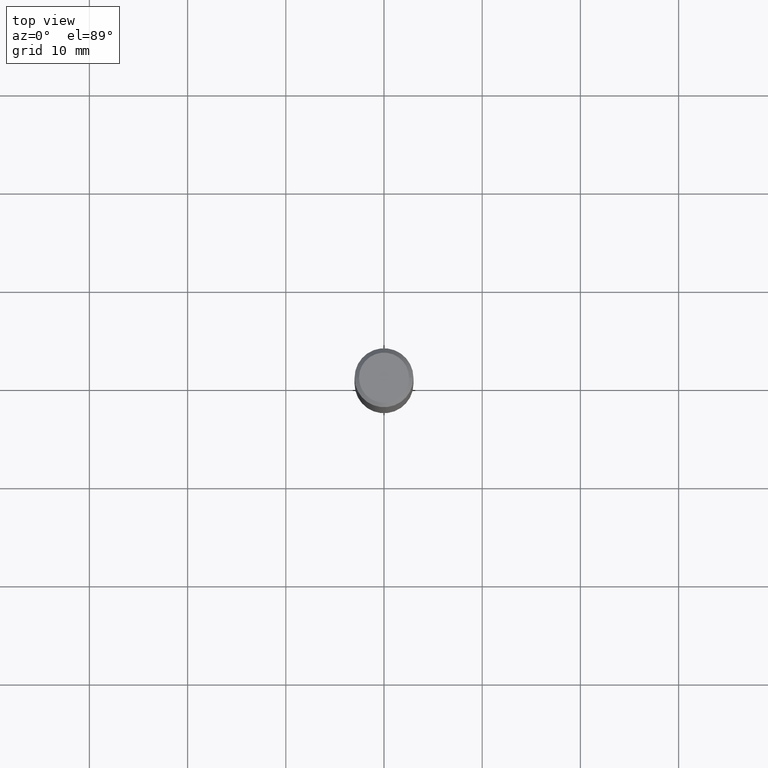
[diagram: clean part render]
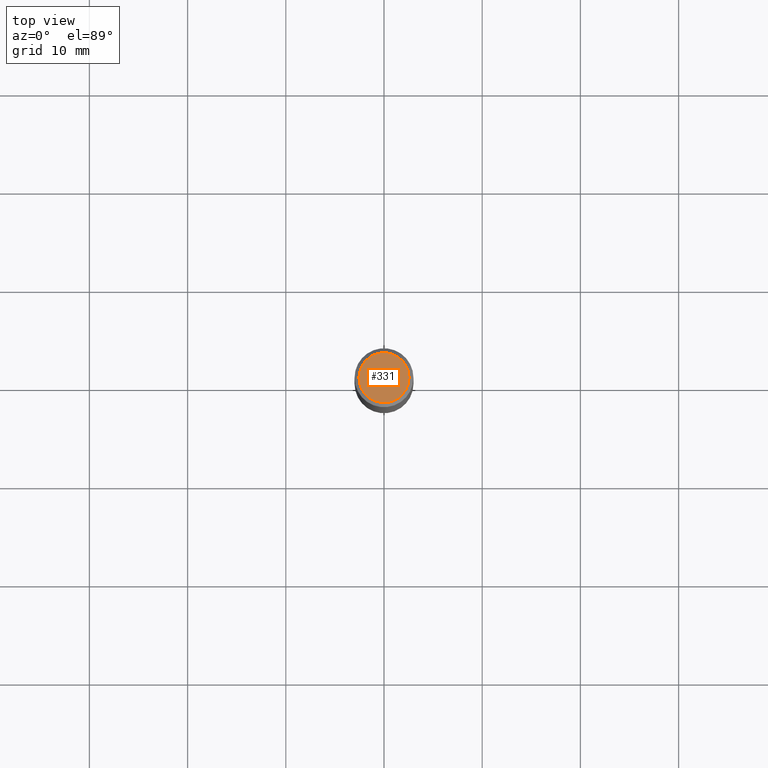
[diagram: same view with one face highlighted and labeled with its STEP entity id]
A machine part, top view. The second image highlights one B-rep face of the part: STEP entity #331.
In plain terms, the highlighted planar face has unit normal (0, -0, -1).
Its self-contained STEP definition (entity closure, byte-faithful):
#10 = VERTEX_POINT ( 'NONE', #278 ) ;
#18 = EDGE_CURVE ( 'NONE', #191, #10, #481, .T. ) ;
#26 = FACE_OUTER_BOUND ( 'NONE', #385, .T. ) ;
#74 = DIRECTION ( 'NONE',  ( 1.000000000000000000, -6.982962677686266711E-15, 4.875668750515086816E-29 ) ) ;
#121 = DIRECTION ( 'NONE',  ( -2.445468806185136597E-29, 3.491481338843145583E-15, 1.000000000000000000 ) ) ;
#166 = AXIS2_PLACEMENT_3D ( 'NONE', #366, #257, #265 ) ;
#191 = VERTEX_POINT ( 'NONE', #359 ) ;
#218 = EDGE_CURVE ( 'NONE', #10, #191, #279, .T. ) ;
#230 = AXIS2_PLACEMENT_3D ( 'NONE', #252, #284, #472 ) ;
#252 = CARTESIAN_POINT ( 'NONE',  ( 3.006365662761078129E-46, -4.292293396963677838E-32, -1.229361689324070654E-17 ) ) ;
#257 = DIRECTION ( 'NONE',  ( 2.438088387897960049E-29, -3.491481338843145188E-15, -1.000000000000000000 ) ) ;
#265 = DIRECTION ( 'NONE',  ( -1.000000000000000000, 6.982962677686265922E-15, -4.876176775795935793E-29 ) ) ;
#278 = CARTESIAN_POINT ( 'NONE',  ( 0.1003850000000000020, -7.803837484803599345E-16, -1.229361689323552810E-17 ) ) ;
#279 = CIRCLE ( 'NONE', #230, 0.1003850000000000020 ) ;
#284 = DIRECTION ( 'NONE',  ( -2.445468806185136597E-29, 3.491481338843145583E-15, 1.000000000000000000 ) ) ;
#298 = PLANE ( 'NONE',  #166 ) ;
#312 = CARTESIAN_POINT ( 'NONE',  ( 3.006365662761078129E-46, -4.292293396963677838E-32, -1.229361689324070654E-17 ) ) ;
#331 = ADVANCED_FACE ( 'NONE', ( #26 ), #298, .F. ) ;
#334 = AXIS2_PLACEMENT_3D ( 'NONE', #312, #121, #74 ) ;
#359 = CARTESIAN_POINT ( 'NONE',  ( -0.1003850000000000020, 7.319105043583384717E-16, -1.229361689324571704E-17 ) ) ;
#366 = CARTESIAN_POINT ( 'NONE',  ( 1.503182831380539065E-46, -2.146146698481838919E-32, -6.146808446620353272E-18 ) ) ;
#385 = EDGE_LOOP ( 'NONE', ( #423, #479 ) ) ;
#423 = ORIENTED_EDGE ( 'NONE', *, *, #18, .T. ) ;
#472 = DIRECTION ( 'NONE',  ( 1.000000000000000000, -6.982962677686266711E-15, 4.875668750515086816E-29 ) ) ;
#479 = ORIENTED_EDGE ( 'NONE', *, *, #218, .T. ) ;
#481 = CIRCLE ( 'NONE', #334, 0.1003850000000000020 ) ;